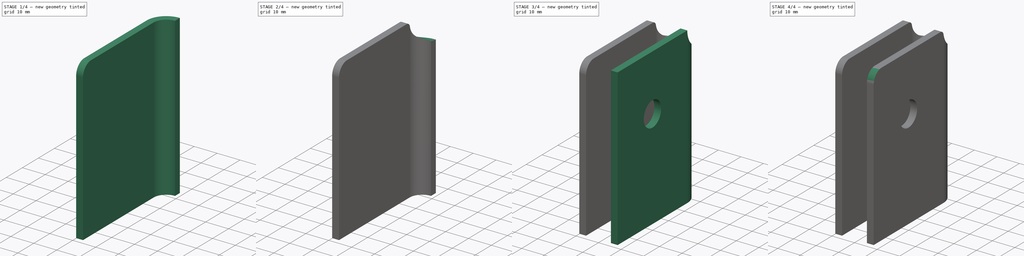
[diagram: build sequence overview — one tinted view per stage of 4, left to right]
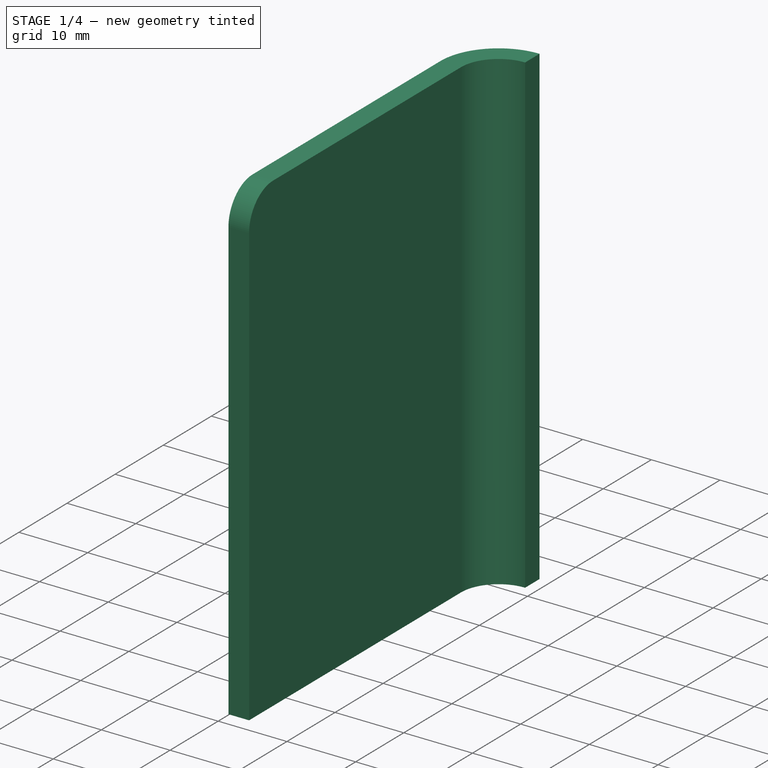
[diagram: stage 1 of 4 — iso view after this stage's code; geometry added in this stage tinted green]
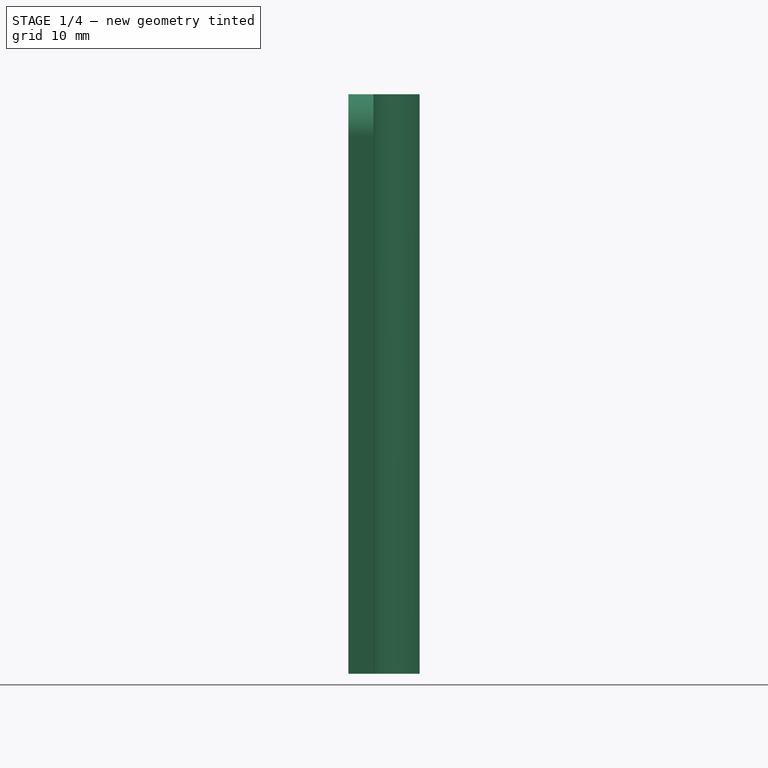
[diagram: stage 1 of 4 — front view after this stage's code; geometry added in this stage tinted green]
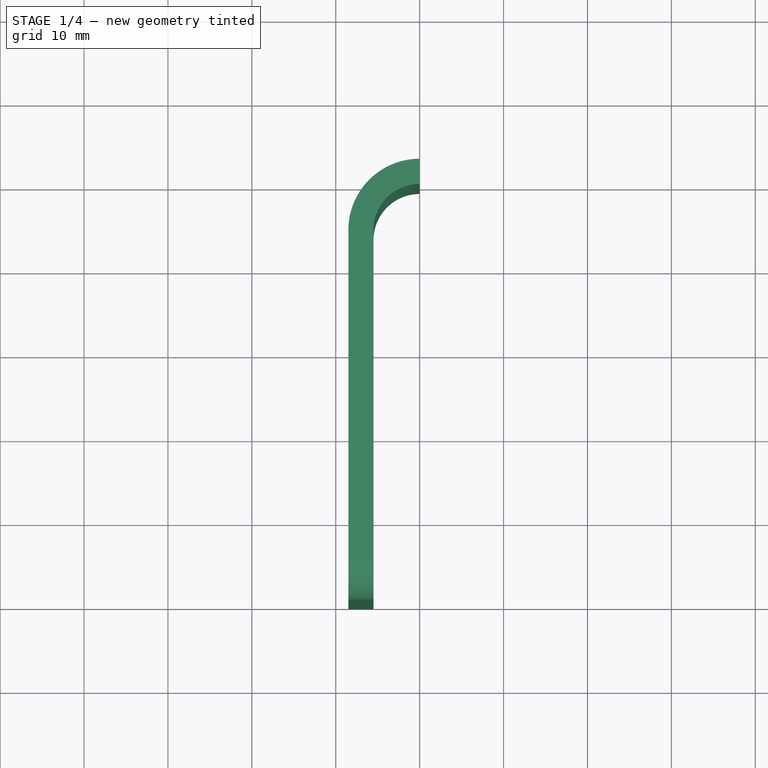
[diagram: stage 1 of 4 — top view after this stage's code; geometry added in this stage tinted green]
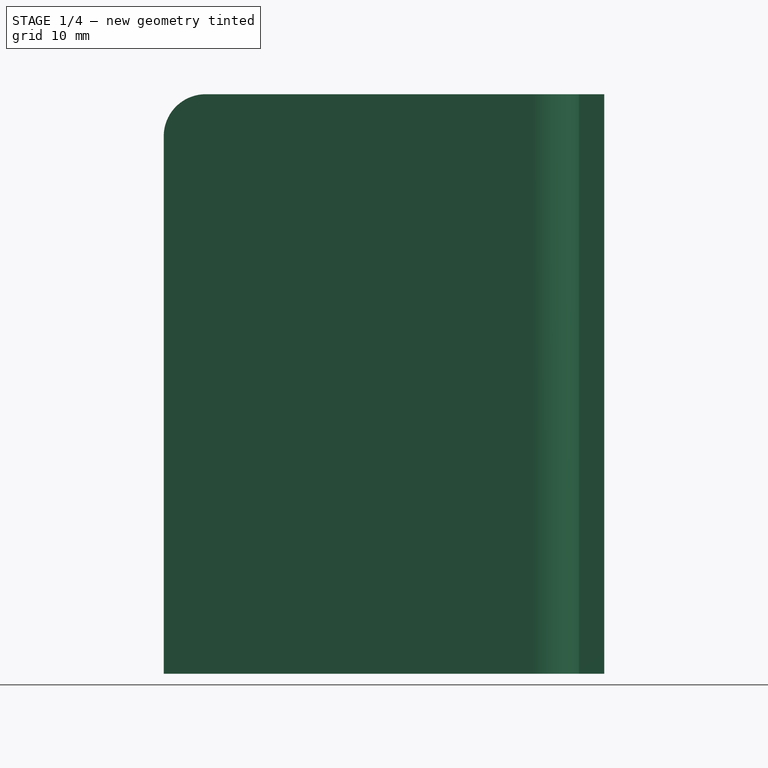
[diagram: stage 1 of 4 — right view after this stage's code; geometry added in this stage tinted green]
FCSTD DOCUMENT  (FreeCAD 0.18R4 (GitTag))
Label: door-lever-holder
License: All rights reserved
LicenseURL: http://en.wikipedia.org/wiki/All_rights_reserved
objects: PartDesign::Fillet×4, Sketcher::SketchObject×3, PartDesign::Pocket×2, PartDesign::Mirrored×2, PartDesign::Pad×1, PartDesign::Body×1
note: 16 computed .brp shape members not serialized (recipe doc carries the construction recipe); baked Part::Feature solids carry a one-line shape summary decoded from their .brp

FEATURE [Sketcher::SketchObject] Sketch
  MapMode = 5
  Support = -> [XY_Plane]
  sketch-geometry (6):
    g0: LineSegment StartX=-5.5 StartY=0 StartZ=0 EndX=-8.5 EndY=0 EndZ=0
    g1: LineSegment StartX=-8.5 StartY=0 StartZ=0 EndX=-8.5 EndY=44 EndZ=0
    g2: LineSegment StartX=-5.5 StartY=44 StartZ=0 EndX=-5.5 EndY=0 EndZ=0
    g3: ArcOfCircle CenterX=0 CenterY=44 CenterZ=0 NormalX=0 NormalY=0 NormalZ=1 AngleXU=0 Radius=8.5 StartAngle=1.5708 EndAngle=3.1416
    g4: ArcOfCircle CenterX=0 CenterY=44 CenterZ=0 NormalX=0 NormalY=0 NormalZ=1 AngleXU=0 Radius=5.5 StartAngle=1.5708 EndAngle=3.14159
    g5: LineSegment StartX=5e-16 StartY=52.5 StartZ=0 EndX=3e-16 EndY=49.5 EndZ=0
  constraints (20):
    c: Coincident(g0,g1)
    c: Horizontal(g0)
    c: Vertical(g1)
    c: Vertical(g2)
    c: Coincident(g2,g0)
    c: Coincident(g3,g1)
    c: PointOnObject(g3,g-2)
    c: Coincident(g4,g2)
    c: PointOnObject(g4,g-2)
    c: Perpendicular(g4,g-2)
    c: Perpendicular(g3,g-2)
    c: DistanceX(g0,g0) = 3
    c: DistanceX(g0,g-1) = 5.5
    c: Radius(g3) = 8.5
    c: Radius(g4) = 5.5
    c: DistanceY(g4,g3) = 3
    c: DistanceY(g0,g3) = 52.5
    c: PointOnObject(g0,g-1)
    c: Coincident(g5,g3)
    c: Coincident(g5,g4)
FEATURE [PartDesign::Pad] Pad
  Length = 69.07
  Length2 = 100
  Profile = -> Sketch
  Refine = true
  Type = 0
FEATURE [PartDesign::Fillet] Fillet
  Base = -> Pad [Edge4]
  BaseFeature = -> Pad
  Radius = 5
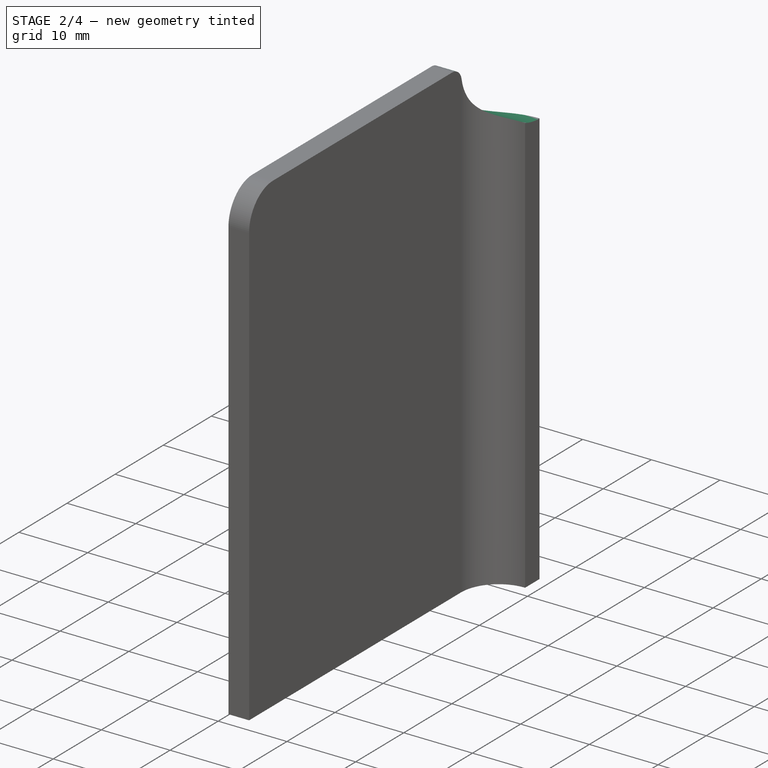
[diagram: stage 2 of 4 — iso view after this stage's code; geometry added in this stage tinted green]
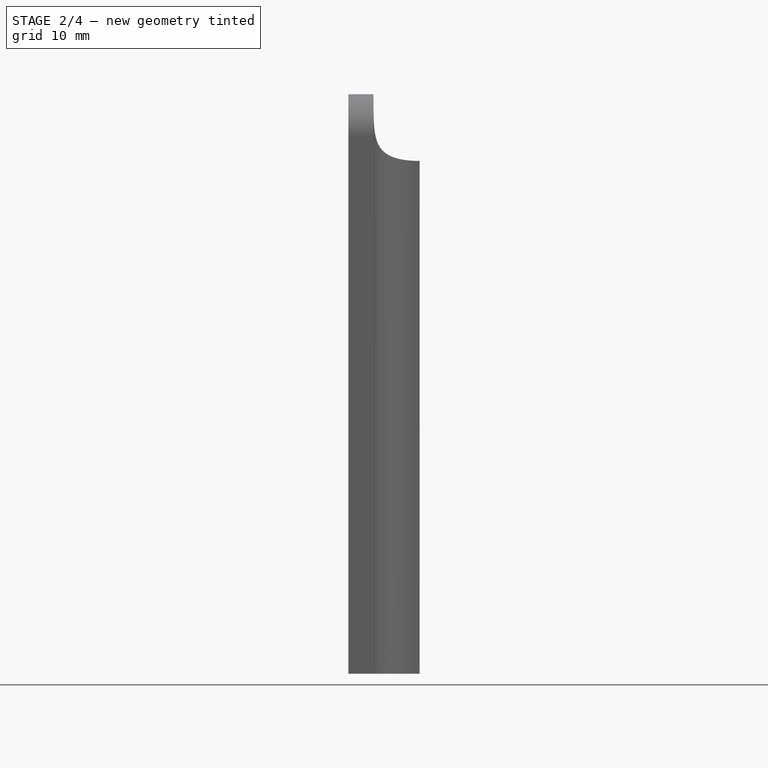
[diagram: stage 2 of 4 — front view after this stage's code; geometry added in this stage tinted green]
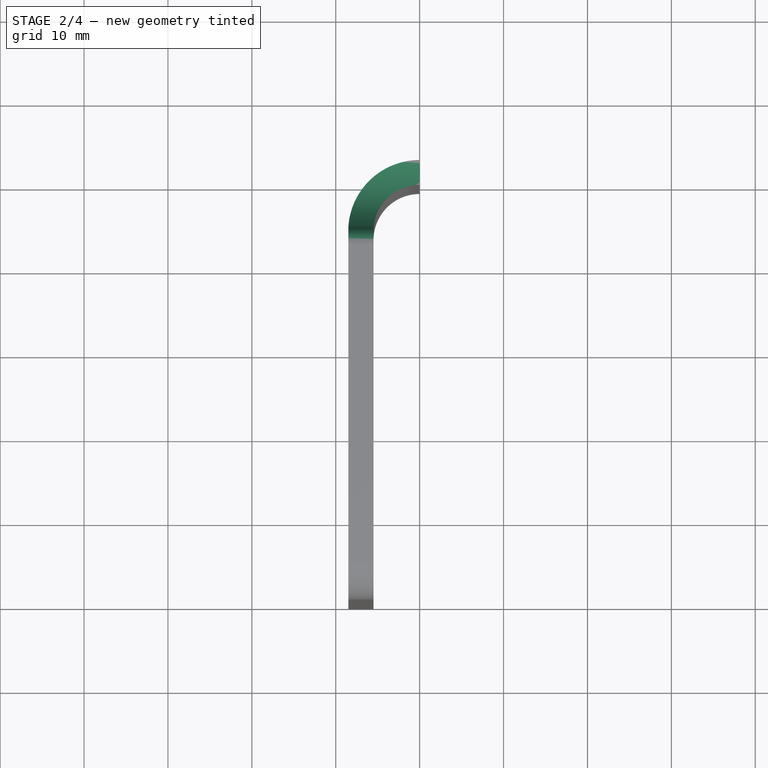
[diagram: stage 2 of 4 — top view after this stage's code; geometry added in this stage tinted green]
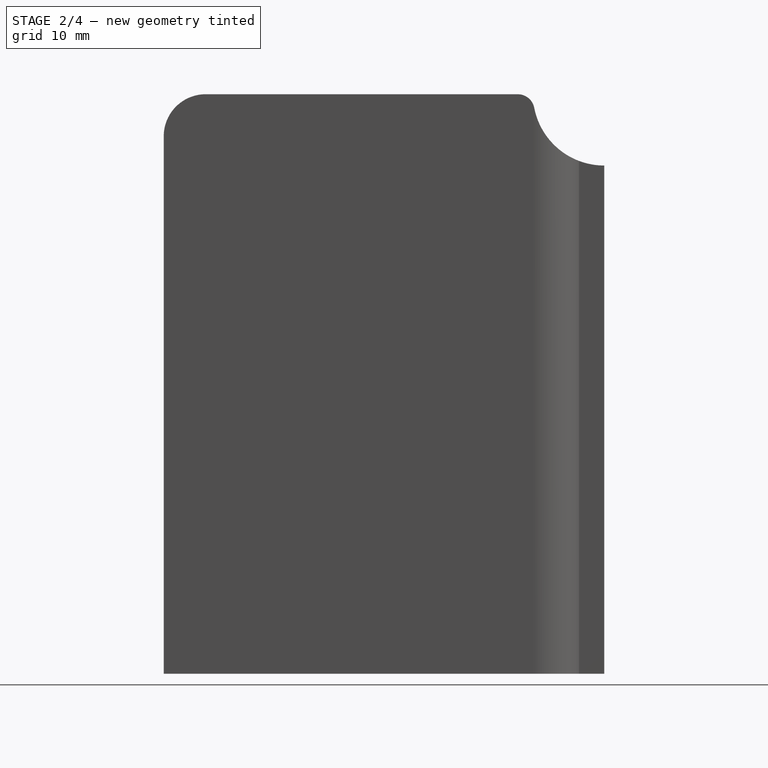
[diagram: stage 2 of 4 — right view after this stage's code; geometry added in this stage tinted green]
FEATURE [Sketcher::SketchObject] Sketch001
  ExternalGeometry = -> [Fillet]
  MapMode = 5
  Placement = pos=(-8.5,0,0) rot=(0.57735,-0.57735,-0.57735;2.0944rad)
  Support = -> [Fillet]
  sketch-geometry (3):
    g0: LineSegment StartX=-44 StartY=69.073 StartZ=0 EndX=-52.5 EndY=69.073 EndZ=0
    g1: LineSegment StartX=-52.5 StartY=69.073 StartZ=0 EndX=-52.5 EndY=60.573 EndZ=0
    g2: ArcOfCircle CenterX=-52.5 CenterY=69.073 CenterZ=0 NormalX=0 NormalY=0 NormalZ=1 AngleXU=0 Radius=8.5 StartAngle=4.71239 EndAngle=6.28319
  constraints (10):
    c: Horizontal(g0)
    c: Coincident(g1,g0)
    c: Vertical(g1)
    c: Coincident(g2,g1)
    c: Coincident(g2,g0)
    c: Perpendicular(g2,g0)
    c: Perpendicular(g2,g1)
    c: DistanceY(g1,g1) = 8.5
    c: DistanceX(g0,g-1) = 52.5
    c: DistanceY(g-1,g0) = 69.073
FEATURE [PartDesign::Pocket] Pocket
  BaseFeature = -> Fillet
  Length = 5
  Length2 = 100
  Profile = -> Sketch001
  Refine = true
  Type = 1
FEATURE [PartDesign::Fillet] Fillet001
  Base = -> Pocket [Edge17]
  BaseFeature = -> Pocket
  Radius = 2
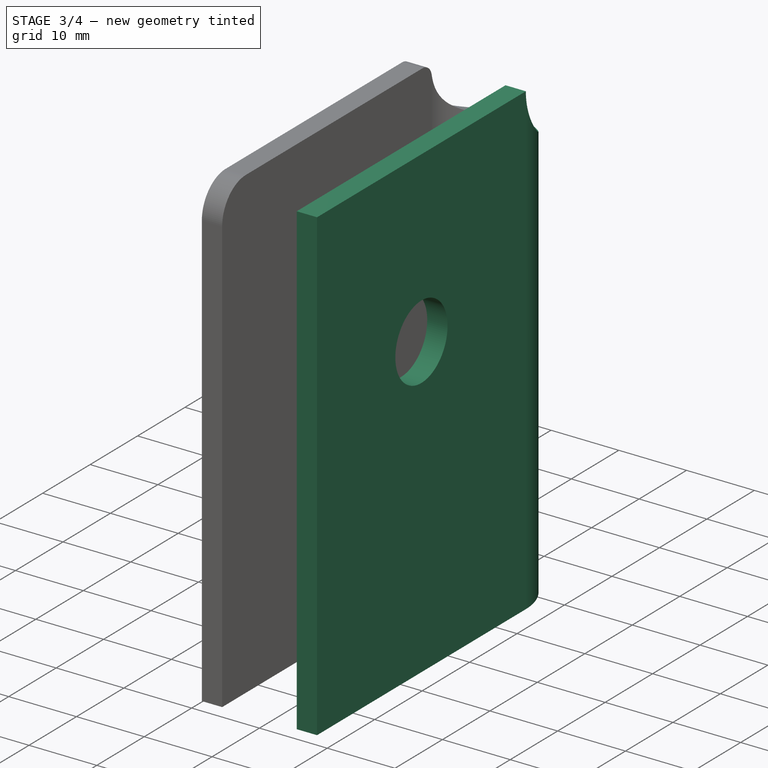
[diagram: stage 3 of 4 — iso view after this stage's code; geometry added in this stage tinted green]
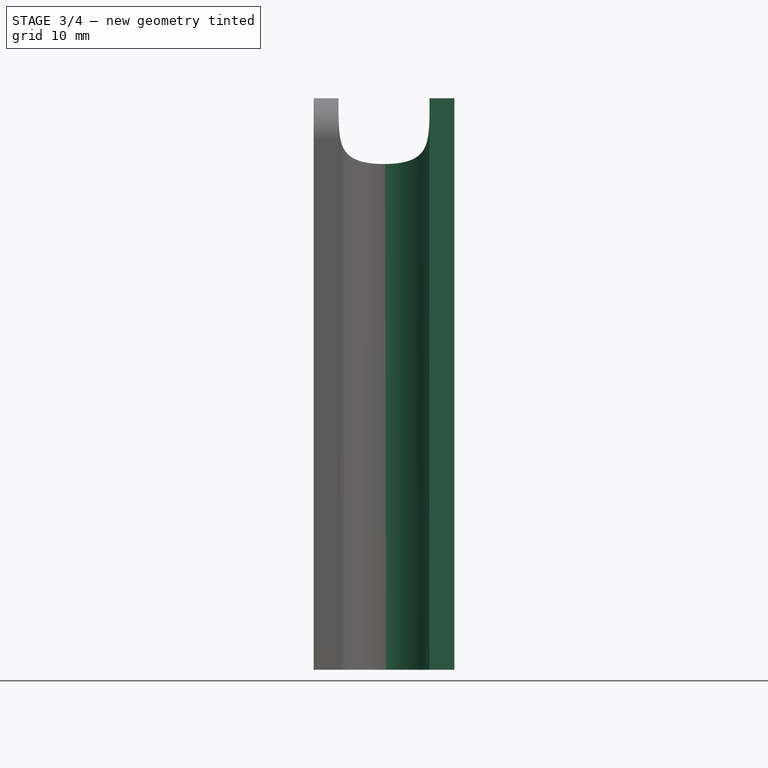
[diagram: stage 3 of 4 — front view after this stage's code; geometry added in this stage tinted green]
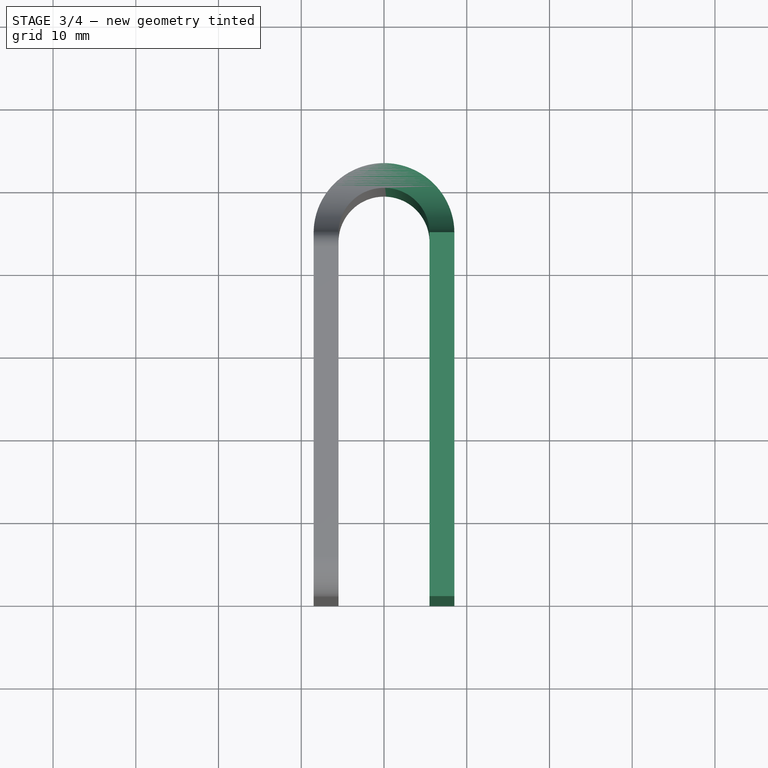
[diagram: stage 3 of 4 — top view after this stage's code; geometry added in this stage tinted green]
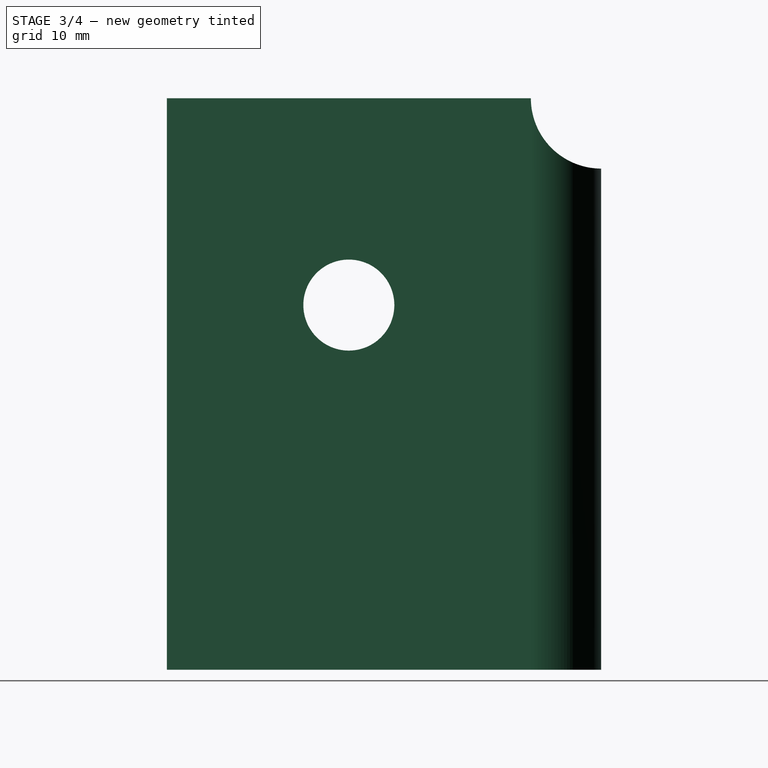
[diagram: stage 3 of 4 — right view after this stage's code; geometry added in this stage tinted green]
FEATURE [Sketcher::SketchObject] Sketch002
  MapMode = 5
  Placement = pos=(-8.5,0,0) rot=(0.57735,-0.57735,-0.57735;2.0944rad)
  Support = -> [Fillet001]
  sketch-geometry (1):
    g0: Circle CenterX=-22 CenterY=44.073 CenterZ=0 NormalX=0 NormalY=0 NormalZ=1 AngleXU=0 Radius=5.5
  constraints (3):
    c: Radius(g0) = 5.5
    c: DistanceY(g-1,g0) = 44.073
    c: DistanceX(g0,g-1) = 22
FEATURE [PartDesign::Pocket] Pocket001
  BaseFeature = -> Fillet001
  Length = 5
  Length2 = 100
  Profile = -> Sketch002
  Refine = true
  Type = 1
FEATURE [PartDesign::Mirrored] Mirrored
  BaseFeature = -> Pocket001
  MirrorPlane = -> YZ_Plane
  Originals = -> [Pad,Pocket001]
  Refine = true
FEATURE [PartDesign::Mirrored] Mirrored001
  BaseFeature = -> Mirrored
  MirrorPlane = -> YZ_Plane
  Originals = -> [Pocket]
  Refine = true
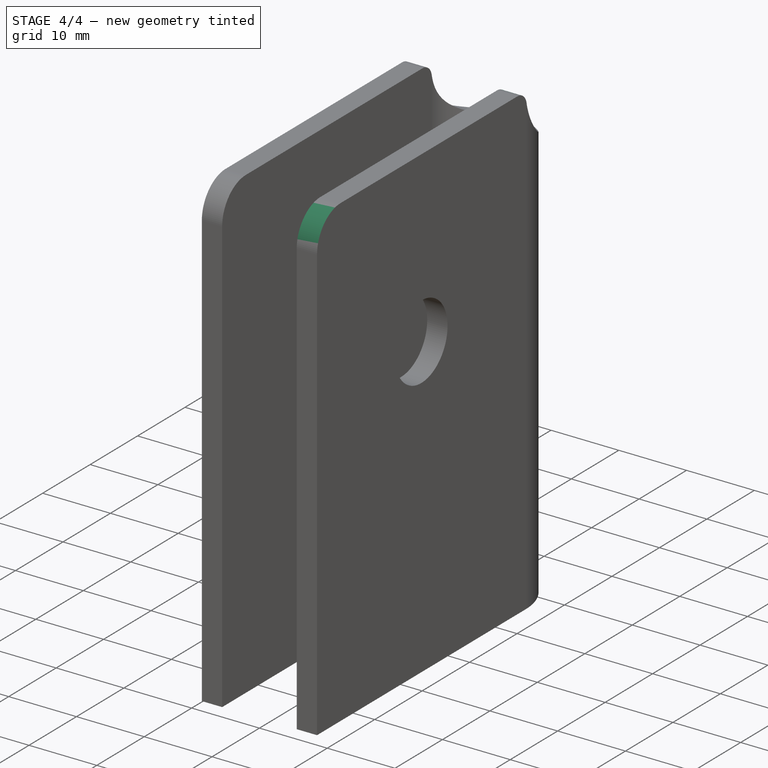
[diagram: stage 4 of 4 — iso view after this stage's code; geometry added in this stage tinted green]
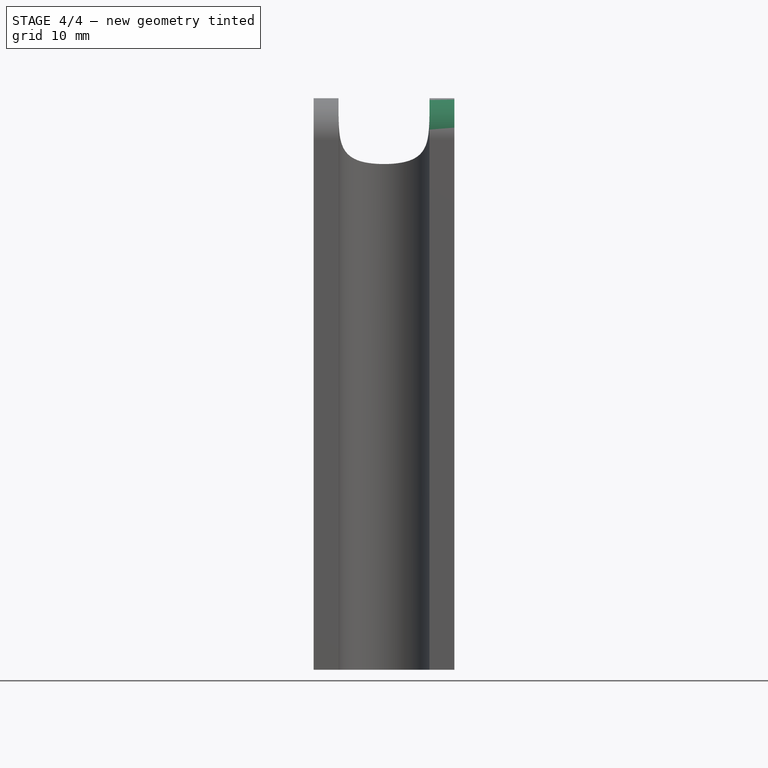
[diagram: stage 4 of 4 — front view after this stage's code; geometry added in this stage tinted green]
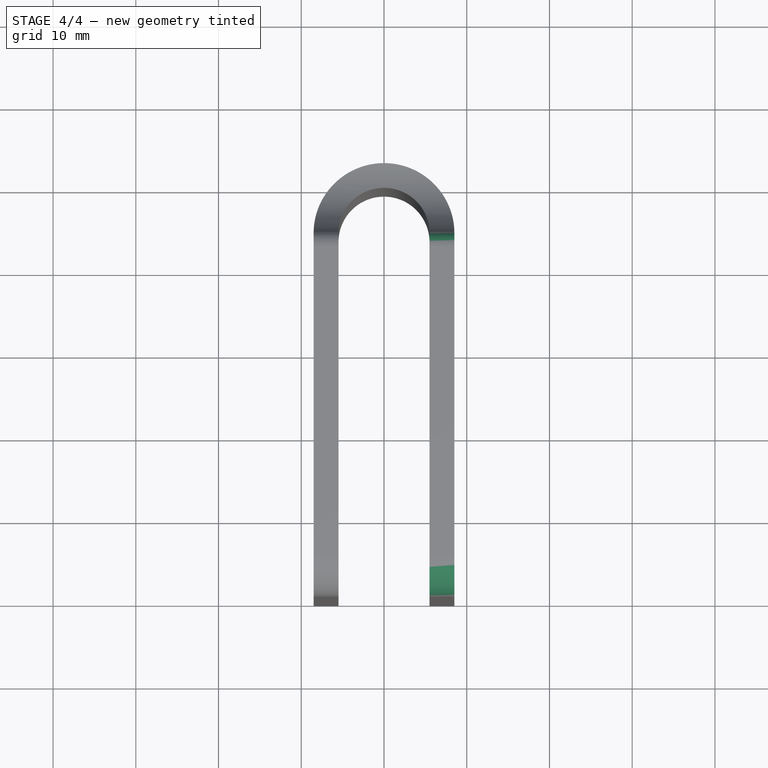
[diagram: stage 4 of 4 — top view after this stage's code; geometry added in this stage tinted green]
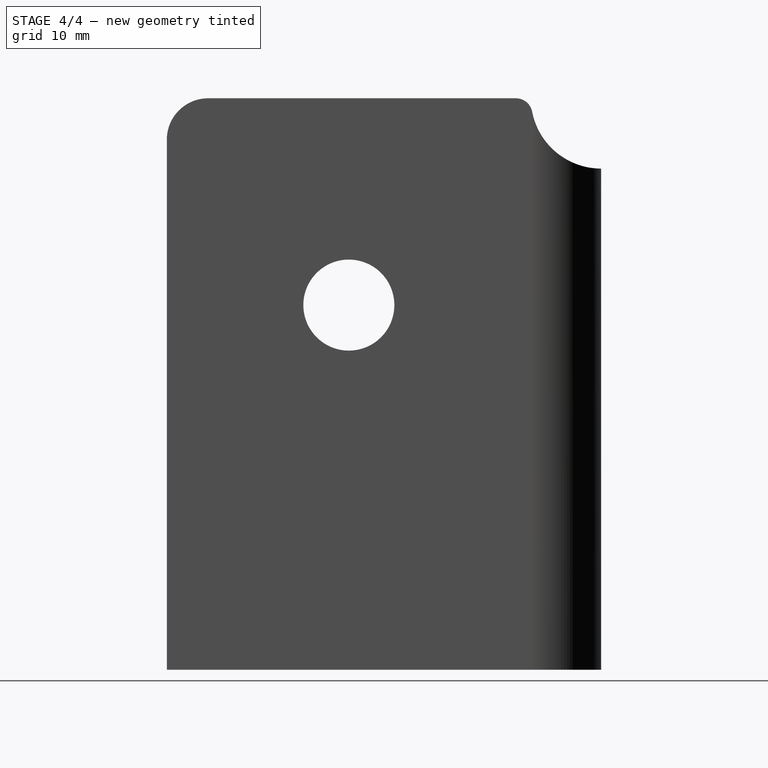
[diagram: stage 4 of 4 — right view after this stage's code; geometry added in this stage tinted green]
FEATURE [PartDesign::Fillet] Fillet002
  Base = -> Mirrored001 [Edge44]
  BaseFeature = -> Mirrored001
  Radius = 2
FEATURE [PartDesign::Fillet] Fillet003
  Base = -> Fillet002 [Edge36]
  BaseFeature = -> Fillet002
  Radius = 5
FEATURE [PartDesign::Body] Body
  Group = -> [Sketch,Pad,Fillet,Sketch001,Pocket,Fillet001,Sketch002,Pocket001,Mirrored,Mirrored001,Fillet002,Fillet003]
  Origin = -> Origin
  Tip = -> Fillet003
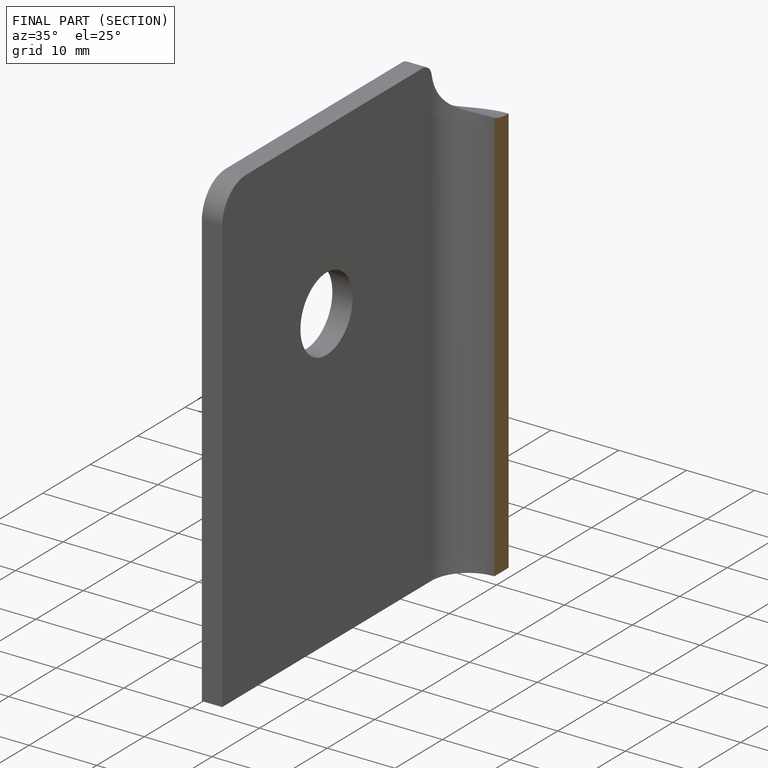
[diagram: finished part — half-section view (interior)]
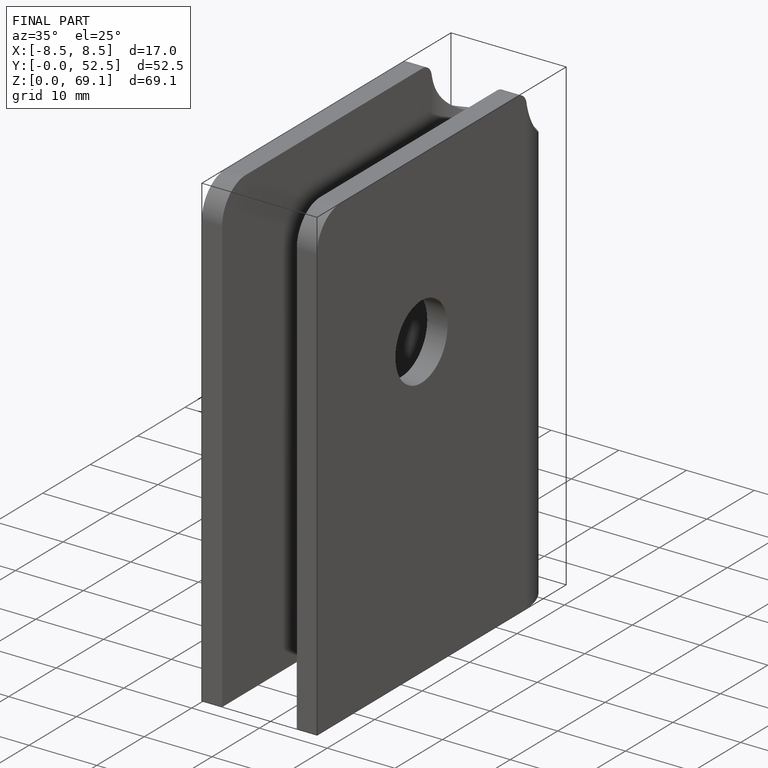
[diagram: finished part — iso view with bounding-box wireframe]
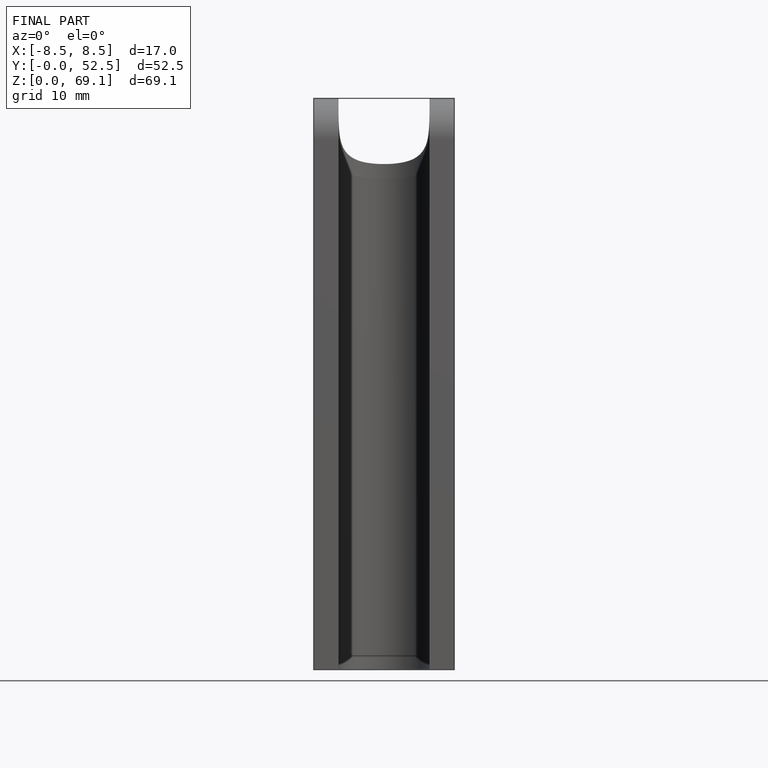
[diagram: finished part — front view with bounding-box wireframe]
